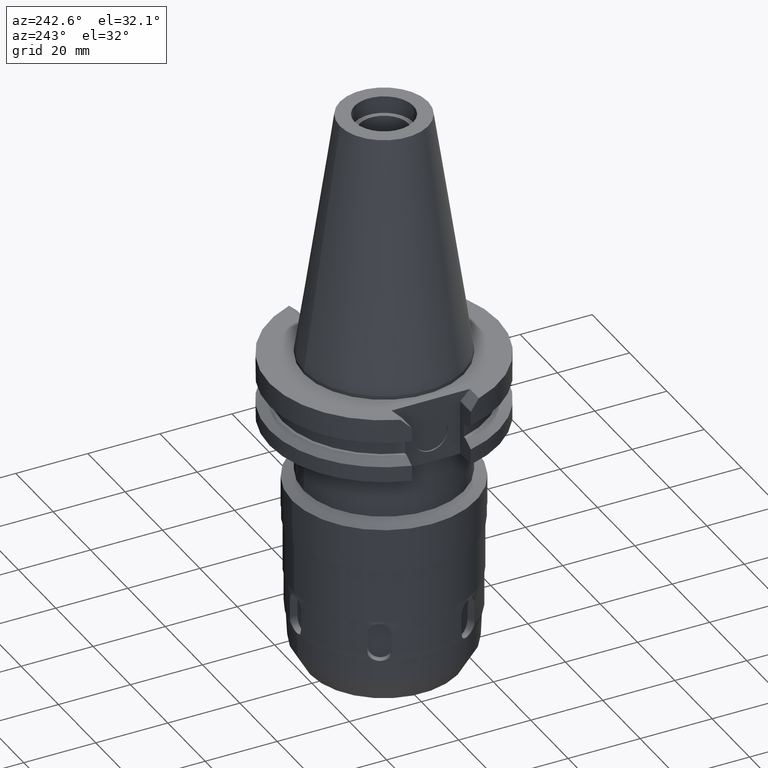
[diagram: clean part render]
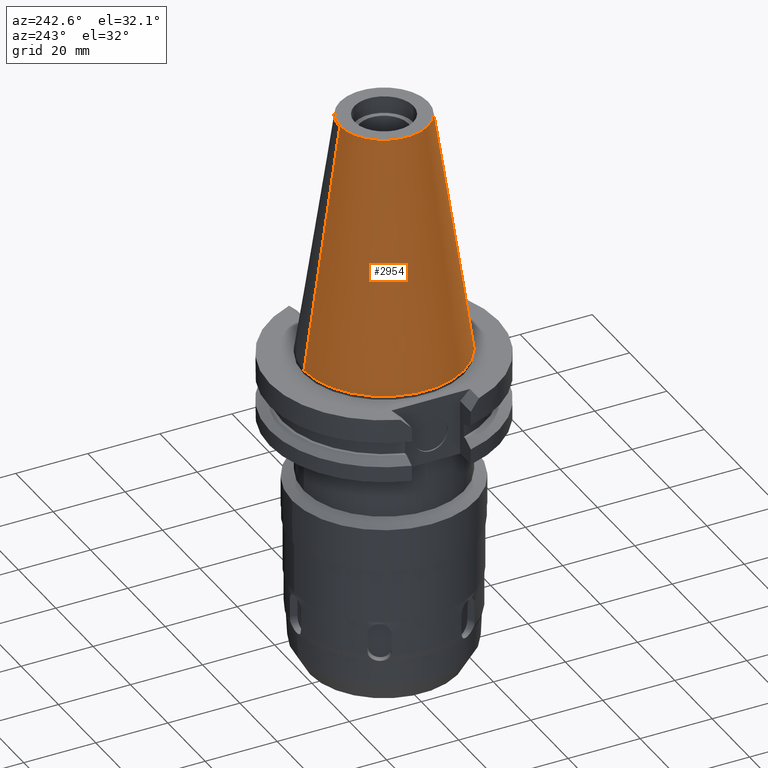
[diagram: same view with one face highlighted and labeled with its STEP entity id]
A machine part, auxiliary view. The second image highlights one B-rep face of the part: STEP entity #2954.
In plain terms, the highlighted conical surface has half-angle 8.297 deg.
Its self-contained STEP definition (entity closure, byte-faithful):
#17=CARTESIAN_POINT('',(0.E0,1.642557519356E-14,6.825E1));
#18=DIRECTION('',(0.E0,0.E0,-1.E0));
#19=DIRECTION('',(0.E0,-1.E0,0.E0));
#20=AXIS2_PLACEMENT_3D('',#17,#18,#19);
#50=DIRECTION('',(0.E0,-1.443069799457E-1,-9.895329683942E-1));
#51=VECTOR('',#50,6.897193138573E1);
#52=CARTESIAN_POINT('',(0.E0,-1.227186888070E1,6.825E1));
#53=LINE('',#52,#51);
#57=CARTESIAN_POINT('',(0.E0,1.642557519356E-14,-3.126388037344E-13));
#58=DIRECTION('',(0.E0,0.E0,-1.E0));
#59=DIRECTION('',(0.E0,-1.E0,0.E0));
#60=AXIS2_PLACEMENT_3D('',#57,#58,#59);
#65=DIRECTION('',(0.E0,1.443069799457E-1,-9.895329683942E-1));
#66=VECTOR('',#65,6.897193138573E1);
#67=CARTESIAN_POINT('',(0.E0,1.227186888070E1,6.825E1));
#68=LINE('',#67,#66);
#2544=CARTESIAN_POINT('',(0.E0,-1.227186888070E1,6.825E1));
#2545=CARTESIAN_POINT('',(0.E0,1.227186888070E1,6.825E1));
#2546=VERTEX_POINT('',#2544);
#2547=VERTEX_POINT('',#2545);
#2878=CARTESIAN_POINT('',(0.E0,2.2225E1,-1.989519660128E-13));
#2879=VERTEX_POINT('',#2878);
#2880=CARTESIAN_POINT('',(0.E0,-2.2225E1,-1.989519660128E-13));
#2881=VERTEX_POINT('',#2880);
#2940=CARTESIAN_POINT('',(0.E0,1.642557519356E-14,3.4125E1));
#2941=DIRECTION('',(0.E0,0.E0,-1.E0));
#2942=DIRECTION('',(0.E0,-1.E0,0.E0));
#2943=AXIS2_PLACEMENT_3D('',#2940,#2941,#2942);
#2944=CONICAL_SURFACE('',#2943,1.724843444035E1,8.29715E0);
#2946=ORIENTED_EDGE('',*,*,#2945,.F.);
#2947=ORIENTED_EDGE('',*,*,#2927,.F.);
#2949=ORIENTED_EDGE('',*,*,#2948,.T.);
#2951=ORIENTED_EDGE('',*,*,#2950,.T.);
#2952=EDGE_LOOP('',(#2946,#2947,#2949,#2951));
#2953=FACE_OUTER_BOUND('',#2952,.F.);
#21=CIRCLE('',#20,1.227186888070E1);
#61=CIRCLE('',#60,2.2225E1);
#2927=EDGE_CURVE('',#2546,#2547,#21,.T.);
#2945=EDGE_CURVE('',#2547,#2879,#68,.T.);
#2948=EDGE_CURVE('',#2546,#2881,#53,.T.);
#2950=EDGE_CURVE('',#2881,#2879,#61,.T.);
#2954=ADVANCED_FACE('',(#2953),#2944,.T.);